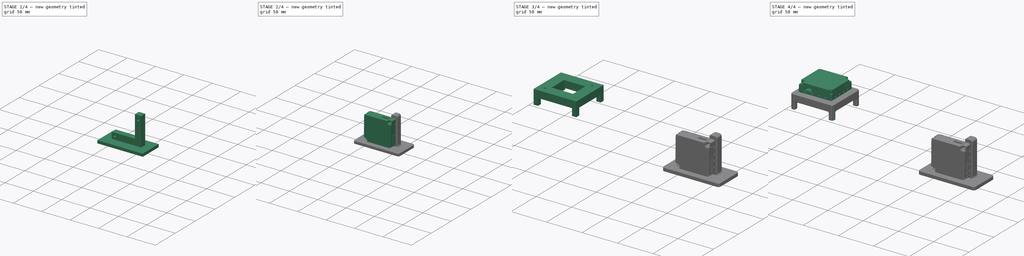
[diagram: build sequence overview — one tinted view per stage of 4, left to right]
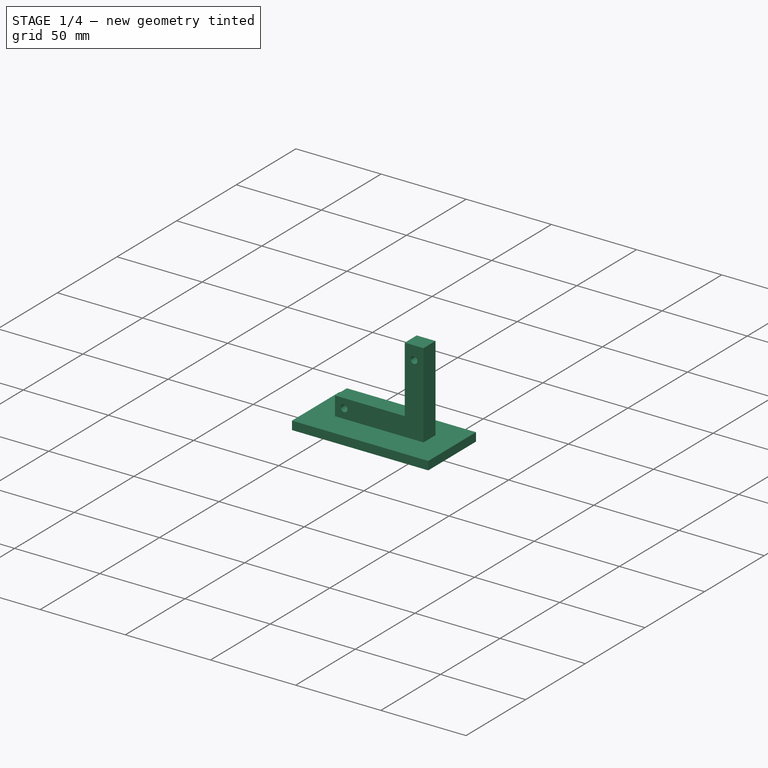
[diagram: stage 1 of 4 — iso view after this stage's code; geometry added in this stage tinted green]
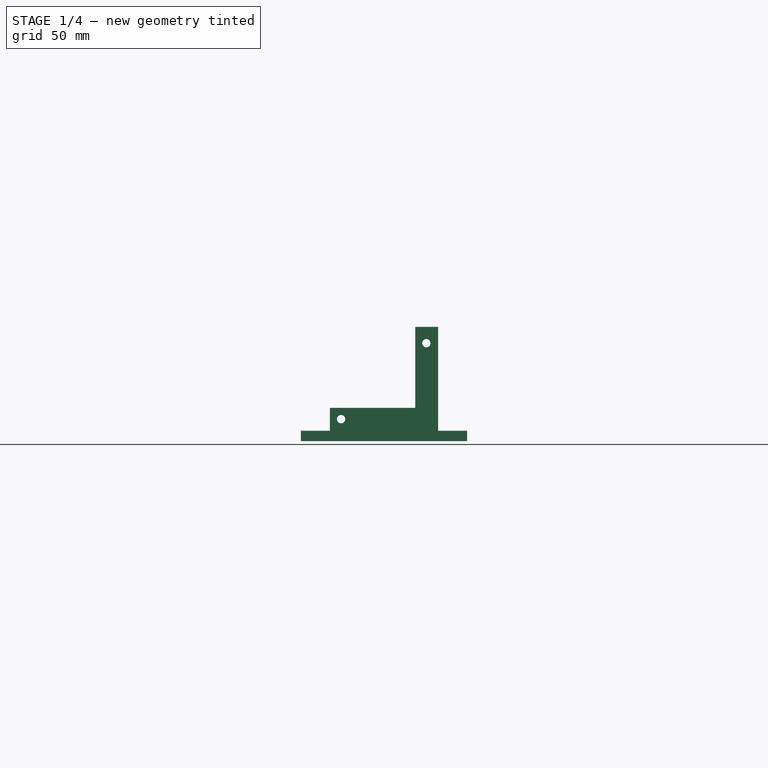
[diagram: stage 1 of 4 — front view after this stage's code; geometry added in this stage tinted green]
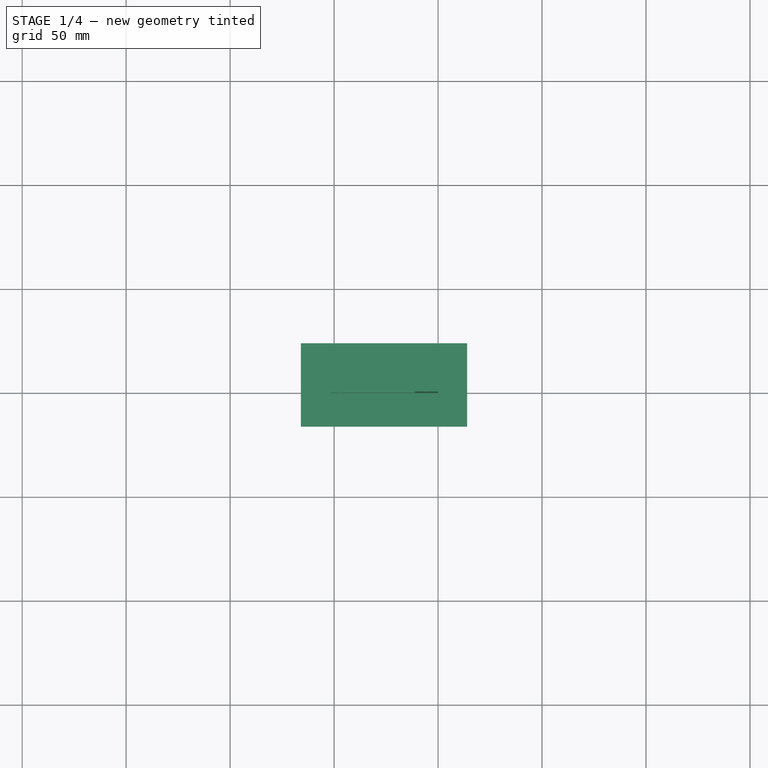
[diagram: stage 1 of 4 — top view after this stage's code; geometry added in this stage tinted green]
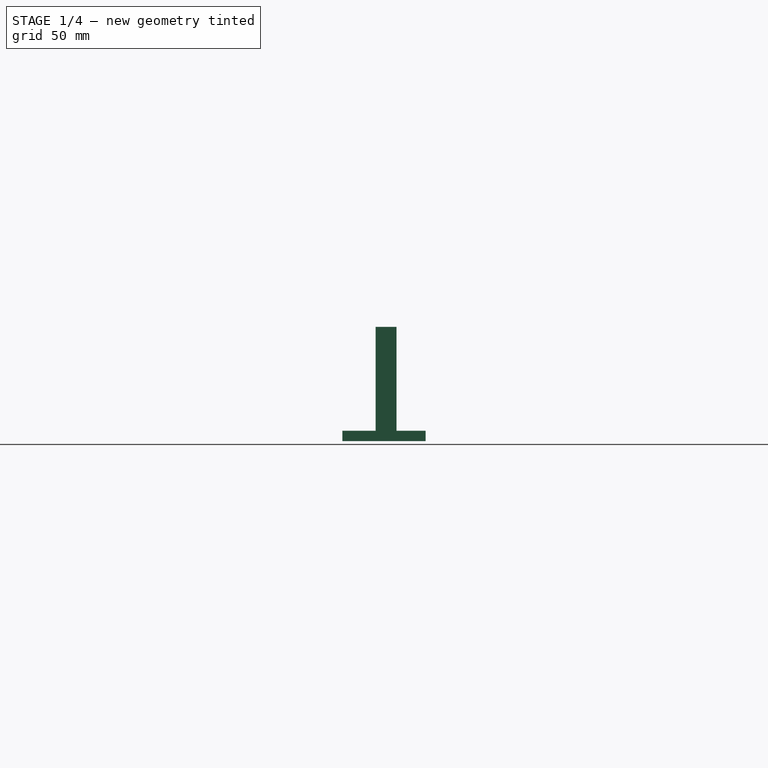
[diagram: stage 1 of 4 — right view after this stage's code; geometry added in this stage tinted green]
FCSTD DOCUMENT  (FreeCAD 1.0R39109 (Git))
Label: IPS7100Base
License: All rights reserved
LicenseURL: https://en.wikipedia.org/wiki/All_rights_reserved
objects: Sketcher::SketchObject×4, Part::Extrusion×4, Part::Feature×2, Part::Compound×2, Part::MultiFuse×2, Part::Fillet×2, App::Part×2
note: 20 computed .brp shape members not serialized (recipe doc carries the construction recipe); baked Part::Feature solids carry a one-line shape summary decoded from their .brp

FEATURE [App::Part] Part001  label="Horizontal"
  Group = -> [Part__Feature103,Compound002,Extrude,Sketch001,Sketch,Extrude001,Fusion,Fillet]
  Origin = -> Origin001
  Placement = pos=(80,0,-30) rot=(0,0,1;0rad)
FEATURE [Sketcher::SketchObject] Sketch002
  ArcFitTolerance = 1e-06
  FullyConstrained = true
  MakeInternals = false
  Placement = pos=(0,0,0) rot=(0,0.707107,0.707107;3.14159rad)
  sketch-geometry (8):
    g0: LineSegment StartX=-200 StartY=4 StartZ=0 EndX=-189 EndY=4 EndZ=0
    g1: LineSegment StartX=-189 StartY=4 StartZ=0 EndX=-189 EndY=-35 EndZ=0
    g2: LineSegment StartX=-189 StartY=-35 StartZ=0 EndX=-148 EndY=-35 EndZ=0
    g3: LineSegment StartX=-148 StartY=-35 StartZ=0 EndX=-148 EndY=-46 EndZ=0
    g4: LineSegment StartX=-148 StartY=-46 StartZ=0 EndX=-200 EndY=-46 EndZ=0
    g5: LineSegment StartX=-200 StartY=-46 StartZ=0 EndX=-200 EndY=4 EndZ=0
    g6: Circle CenterX=-194.38 CenterY=-3.87 CenterZ=0 NormalX=0 NormalY=0 NormalZ=1 AngleXU=0 Radius=2
    g7: Circle CenterX=-153.37 CenterY=-40.4 CenterZ=0 NormalX=0 NormalY=0 NormalZ=1 AngleXU=0 Radius=2
  constraints (24):
    c: Horizontal(g0)
    c: Coincident(g1,g0)
    c: Vertical(g1)
    c: Coincident(g2,g1)
    c: Horizontal(g2)
    c: Coincident(g3,g2)
    c: Vertical(g3)
    c: Coincident(g4,g3)
    c: Horizontal(g4)
    c: Coincident(g5,g4)
    c: Coincident(g5,g0)
    c: Vertical(g5)
    c: Distance(g3,g3) = 11
    c: DistanceX(g2,g2) = 41
    c: DistanceX(g4,g4) = 52
    c: DistanceY(g5,g5) = 50
    c: Distance(g3,g-2) = 148
    c: Distance(g3,g-1) = 46
    c: Equal(g6,g7)
    c: Diameter(g6) = 4
    c: Distance(g7,g3) = 5.37
    c: Distance(g7,g2) = 5.4
    c: Distance(g6,g0) = 7.87
    c: Distance(g6,g5) = 5.62
FEATURE [Part::Extrusion] Extrude002  label="vert"
  Base = -> Sketch002
  Dir = (0,1,-2e-16)
  DirMode = 2
  FaceMakerClass = Part::FaceMakerBullseye
  FaceMakerMode = 3
  LengthFwd = 10
  LengthRev = 0
  Solid = true
  Symmetric = false
FEATURE [Sketcher::SketchObject] Sketch003
  ArcFitTolerance = 1e-06
  FullyConstrained = true
  MakeInternals = false
  Placement = pos=(0,0,0) rot=(1,0,0;3.14159rad)
  sketch-geometry (4):
    g0: LineSegment StartX=134 StartY=16 StartZ=0 EndX=134 EndY=-24 EndZ=0
    g1: LineSegment StartX=134 StartY=-24 StartZ=0 EndX=214 EndY=-24 EndZ=0
    g2: LineSegment StartX=214 StartY=-24 StartZ=0 EndX=214 EndY=16 EndZ=0
    g3: LineSegment StartX=214 StartY=16 StartZ=0 EndX=134 EndY=16 EndZ=0
  constraints (12):
    c: Coincident(g0,g1)
    c: Coincident(g1,g2)
    c: Coincident(g2,g3)
    c: Coincident(g3,g0)
    c: Vertical(g0)
    c: Vertical(g2)
    c: Horizontal(g1)
    c: Horizontal(g3)
    c: DistanceX(g1,g1) = 80
    c: DistanceY(g0,g0) = 40
    c: Distance(g0,g-2) = 134
    c: Distance(g0,g-1) = 24
FEATURE [Part::Extrusion] Extrude003  label="base"
  Base = -> Sketch003
  Dir = (0,0,-1)
  DirMode = 2
  FaceMakerClass = Part::FaceMakerBullseye
  FaceMakerMode = 3
  LengthFwd = 0
  LengthRev = 5
  Placement = pos=(0,0,-51) rot=(0,0,1;0rad)
  Solid = true
  Symmetric = false
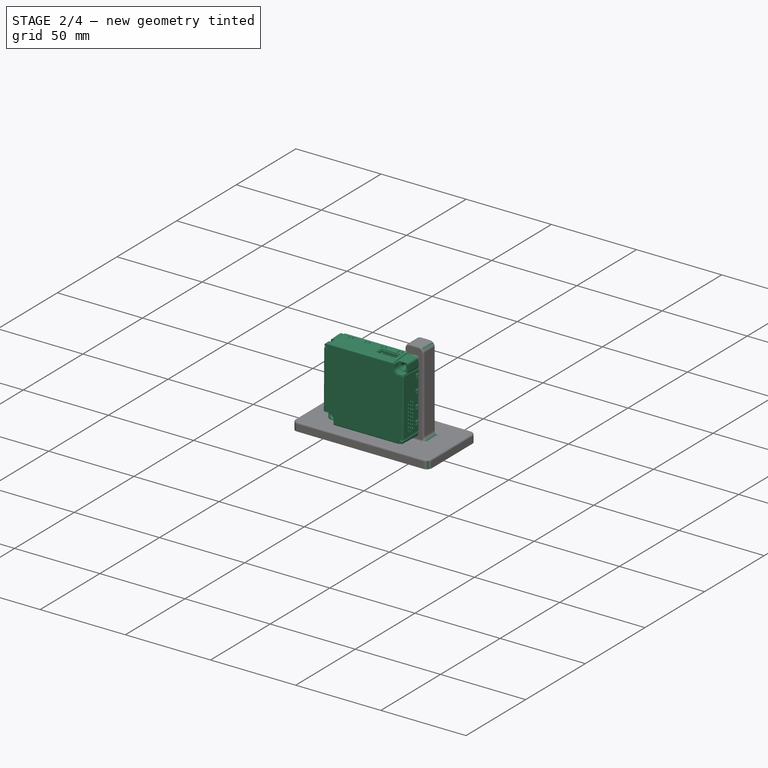
[diagram: stage 2 of 4 — iso view after this stage's code; geometry added in this stage tinted green]
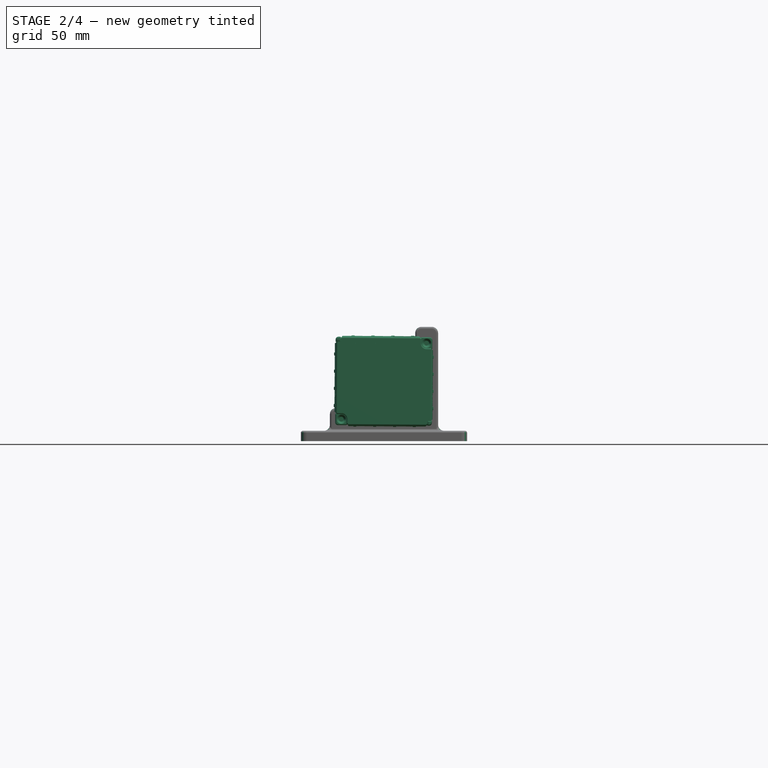
[diagram: stage 2 of 4 — front view after this stage's code; geometry added in this stage tinted green]
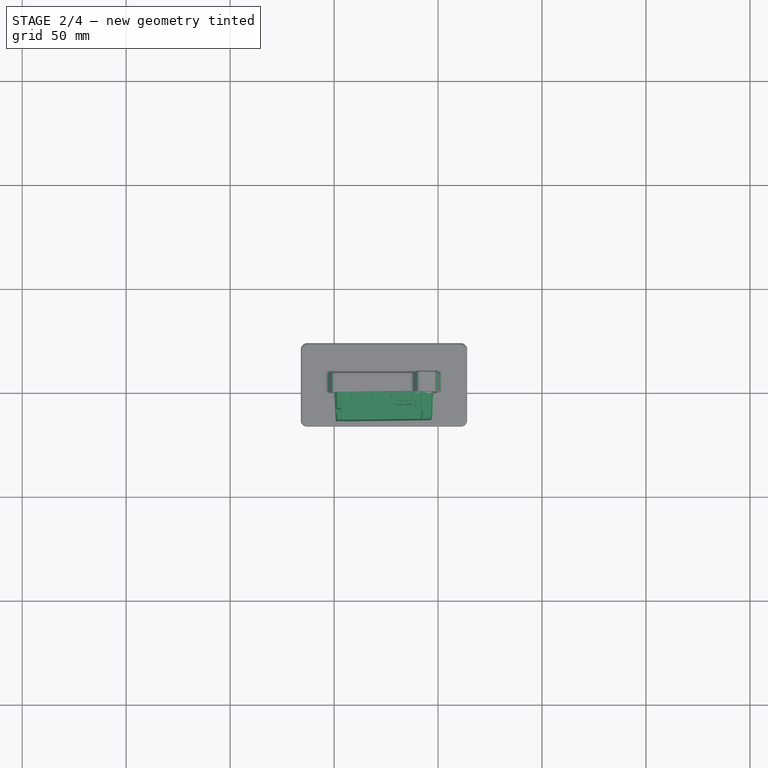
[diagram: stage 2 of 4 — top view after this stage's code; geometry added in this stage tinted green]
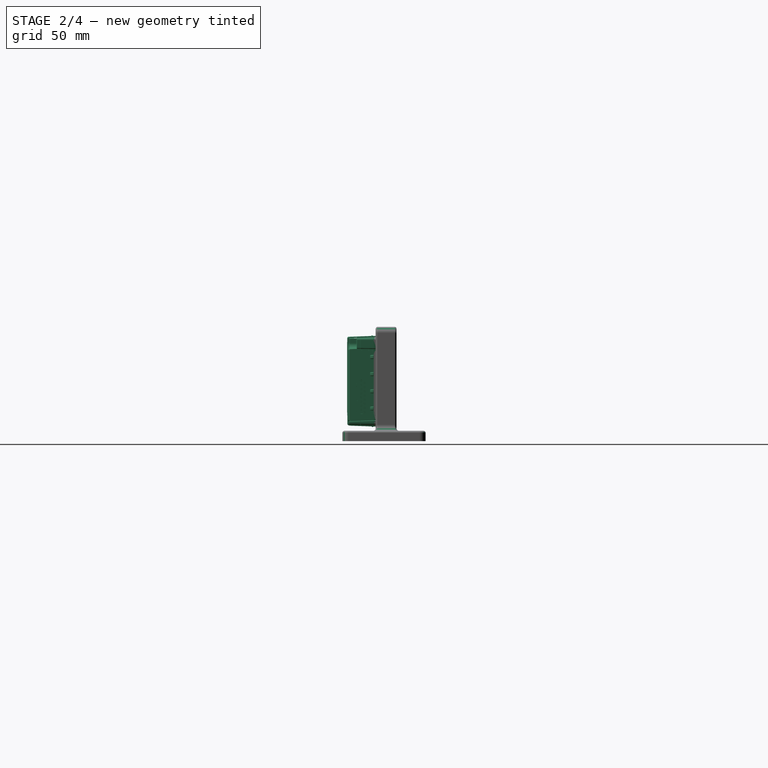
[diagram: stage 2 of 4 — right view after this stage's code; geometry added in this stage tinted green]
FEATURE [Part::Feature] Part__Feature102  label="ips7101"
  Placement = pos=(-24,0,222) rot=(0.999993,-0.003655,0;3.14159rad)
  shape: bbox 48.14 x 14.05 x 44.14 mm, 1935 faces (baked)
FEATURE [Part::Compound] Compound001  label="ips7100s001_Vertical"
  Links = -> [Part__Feature102]
  Placement = pos=(150,0,0) rot=(0.003085,-0.999995,0;3.13542rad)
FEATURE [Part::MultiFuse] Fusion001  label="Mnt"
  Refine = true
  Shapes = -> [Extrude002,Extrude003]
FEATURE [Part::Fillet] Fillet001  label="Mount"
  Base = -> Fusion001
  EdgeLinks = -> Fusion001 [Edge1,Edge2,Edge3,Edge4,Edge5,Edge6,Edge7,Edge8,Edge9,Edge10,Edge11,Edge12,Edge13,Edge16,Edge17,Edge18,Edge21,Edge22,Edge23,Edge24,Edge25,Edge26,Edge29,Edge30,Edge32,Edge34]
  Edges = 26 edges: [Edge1 r=3,Edge2 r=3,Edge3 r=1,Edge4 r=1,Edge5 r=3,Edge6 r=1,Edge7 r=1,Edge8 r=3,Edge9 r=1,Edge10 r=1,Edge11 r=1,Edge12 r=1,Edge13 r=1,Edge16 r=1,Edge17 r=1,Edge18 r=1,Edge21 r=1,Edge22 r=1,Edge23 r=1,Edge24 r=1,Edge25 r=3,Edge26 r=3,Edge29 r=3,Edge30 r=3,Edge32 r=3,Edge34 r=3]
FEATURE [App::Part] Part  label="Vertical"
  Group = -> [Part__Feature102,Compound001,Sketch002,Sketch003,Extrude003,Extrude002,Fusion001,Fillet001]
  Origin = -> Origin
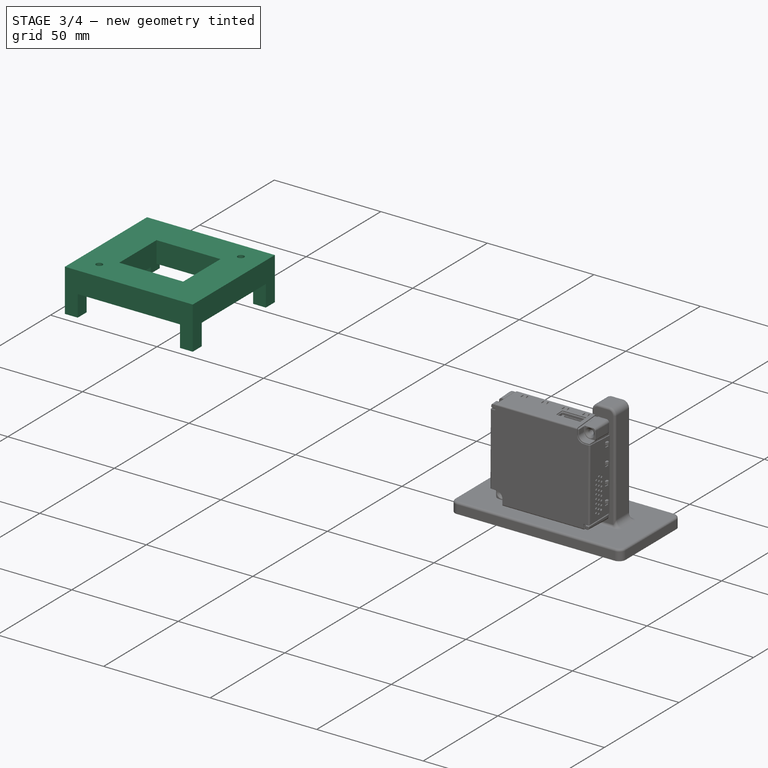
[diagram: stage 3 of 4 — iso view after this stage's code; geometry added in this stage tinted green]
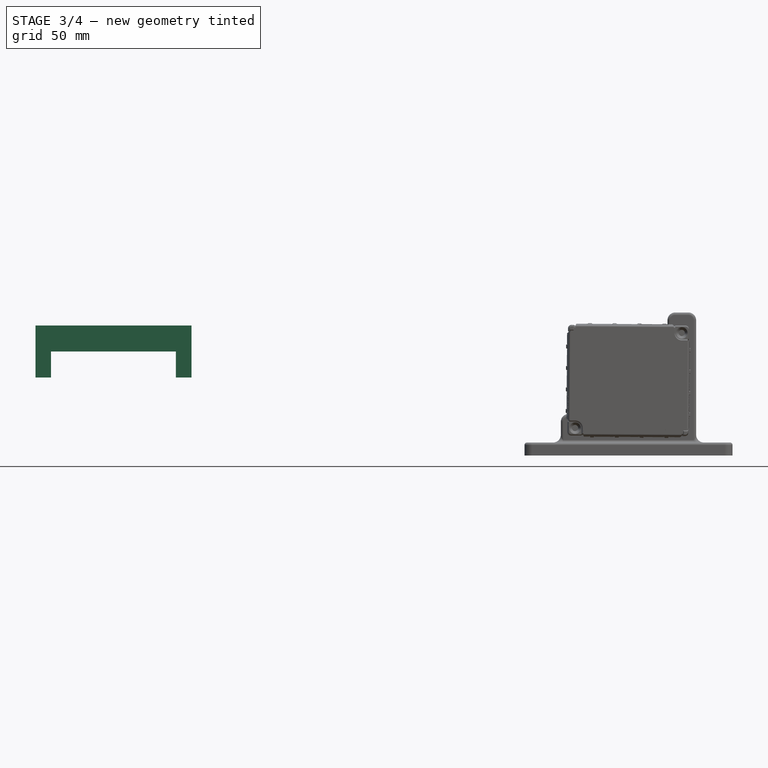
[diagram: stage 3 of 4 — front view after this stage's code; geometry added in this stage tinted green]
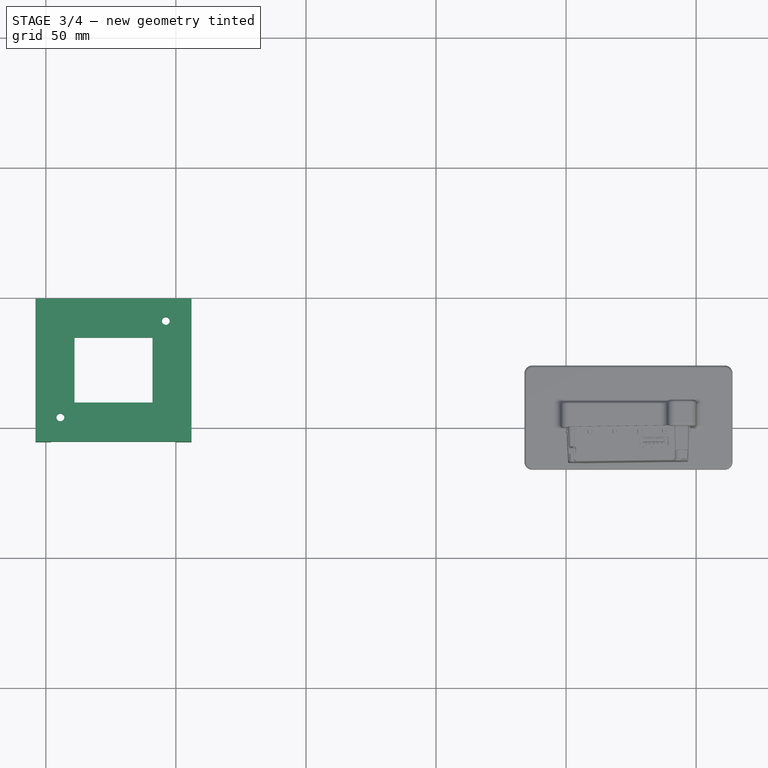
[diagram: stage 3 of 4 — top view after this stage's code; geometry added in this stage tinted green]
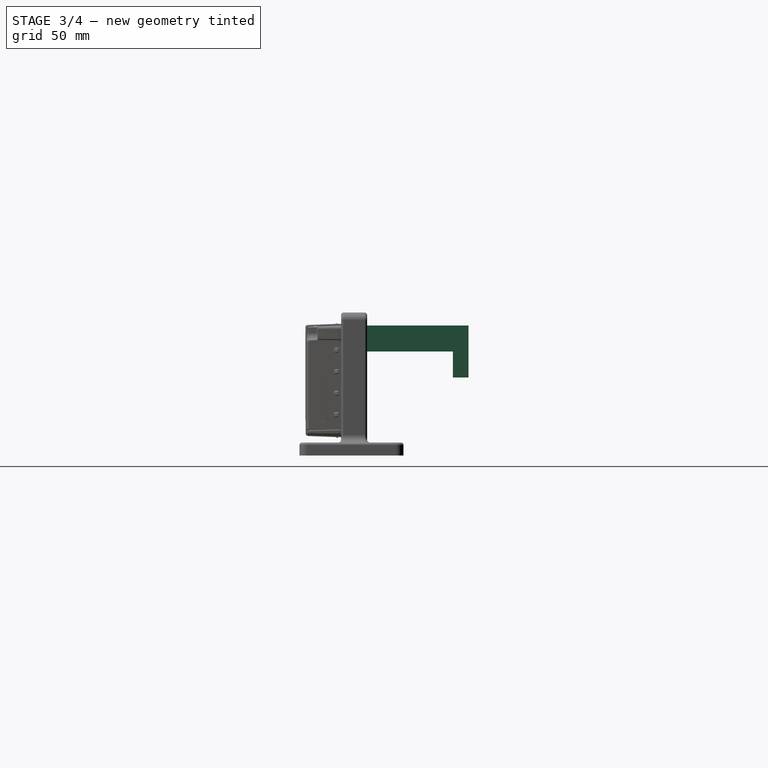
[diagram: stage 3 of 4 — right view after this stage's code; geometry added in this stage tinted green]
FEATURE [Part::Extrusion] Extrude  label="base_mount"
  Base = -> Sketch
  Dir = (0,0,1)
  DirMode = 2
  FaceMakerClass = Part::FaceMakerBullseye
  FaceMakerMode = 3
  LengthFwd = 10
  LengthRev = 0
  Placement = pos=(0,0,-11) rot=(0,0,1;0rad)
  Solid = true
  Symmetric = false
FEATURE [Sketcher::SketchObject] Sketch001
  ArcFitTolerance = 1e-06
  FullyConstrained = true
  MakeInternals = false
  Placement = pos=(0,0,0) rot=(1,0,0;3.14159rad)
  sketch-geometry (16):
    g0: LineSegment StartX=0 StartY=0 StartZ=0 EndX=6 EndY=0 EndZ=0
    g1: LineSegment StartX=6 StartY=0 StartZ=0 EndX=6 EndY=6 EndZ=0
    g2: LineSegment StartX=6 StartY=6 StartZ=0 EndX=0 EndY=6 EndZ=0
    g3: LineSegment StartX=0 StartY=6 StartZ=0 EndX=0 EndY=0 EndZ=0
    g4: LineSegment StartX=6 StartY=-49 StartZ=0 EndX=6 EndY=-43 EndZ=0
    g5: LineSegment StartX=6 StartY=-43 StartZ=0 EndX=0 EndY=-43 EndZ=0
    g6: LineSegment StartX=0 StartY=-43 StartZ=0 EndX=0 EndY=-49 EndZ=0
    g7: LineSegment StartX=0 StartY=-49 StartZ=0 EndX=6 EndY=-49 EndZ=0
    g8: LineSegment StartX=-54 StartY=-49 StartZ=0 EndX=-48 EndY=-49 EndZ=0
    g9: LineSegment StartX=-48 StartY=-49 StartZ=0 EndX=-48 EndY=-43 EndZ=0
    g10: LineSegment StartX=-48 StartY=-43 StartZ=0 EndX=-54 EndY=-43 EndZ=0
    g11: LineSegment StartX=-54 StartY=-43 StartZ=0 EndX=-54 EndY=-49 EndZ=0
    g12: LineSegment StartX=-54 StartY=6 StartZ=0 EndX=-54 EndY=0 EndZ=0
    g13: LineSegment StartX=-54 StartY=0 StartZ=0 EndX=-48 EndY=0 EndZ=0
    g14: LineSegment StartX=-48 StartY=0 StartZ=0 EndX=-48 EndY=6 EndZ=0
    g15: LineSegment StartX=-48 StartY=6 StartZ=0 EndX=-54 EndY=6 EndZ=0
  constraints (47):
    c: Coincident(g0,g1)
    c: Coincident(g1,g2)
    c: Coincident(g2,g3)
    c: Coincident(g3,g0)
    c: Horizontal(g0)
    c: Horizontal(g2)
    c: Vertical(g1)
    c: Vertical(g3)
    c: Coincident(g0,g-1)
    c: Coincident(g4,g5)
    c: Coincident(g5,g6)
    c: Coincident(g6,g7)
    c: Coincident(g7,g4)
    c: Vertical(g4)
    c: Vertical(g6)
    c: Horizontal(g5)
    c: Horizontal(g7)
    c: PointOnObject(g5,g-2)
    c: Coincident(g8,g9)
    c: Coincident(g9,g10)
    c: Coincident(g10,g11)
    c: Coincident(g11,g8)
    c: Horizontal(g8)
    c: Horizontal(g10)
    c: Vertical(g9)
    c: Vertical(g11)
    c: Coincident(g12,g13)
    c: Coincident(g13,g14)
    c: Coincident(g14,g15)
    c: Coincident(g15,g12)
    c: Vertical(g12)
    c: Vertical(g14)
    c: Horizontal(g13)
    c: Horizontal(g15)
    c: PointOnObject(g13,g-1)
    c: DistanceX(g0,g0) = 6
    c: DistanceY(g3,g3) = 6
    c: Vertical(g0,g4)
    c: DistanceY(g6,g6) = 6
    c: Distance(g0,g7) = 49
    c: Horizontal(g9,g5)
    c: Horizontal(g8,g6)
    c: Horizontal(g14,g2)
    c: DistanceX(g13,g13) = 6
    c: DistanceX(g12,g-1) = 54
    c: Vertical(g13,g9)
    c: Vertical(g12,g10)
FEATURE [Part::Extrusion] Extrude001  label="legs"
  Base = -> Sketch001
  Dir = (0,0,-1)
  DirMode = 2
  FaceMakerClass = Part::FaceMakerBullseye
  FaceMakerMode = 3
  LengthFwd = 0
  LengthRev = 10
  Placement = pos=(0,0,-21) rot=(0,0,1;0rad)
  Solid = true
  Symmetric = false
FEATURE [Part::MultiFuse] Fusion  label="base_w_legs"
  Refine = true
  Shapes = -> [Extrude,Extrude001]
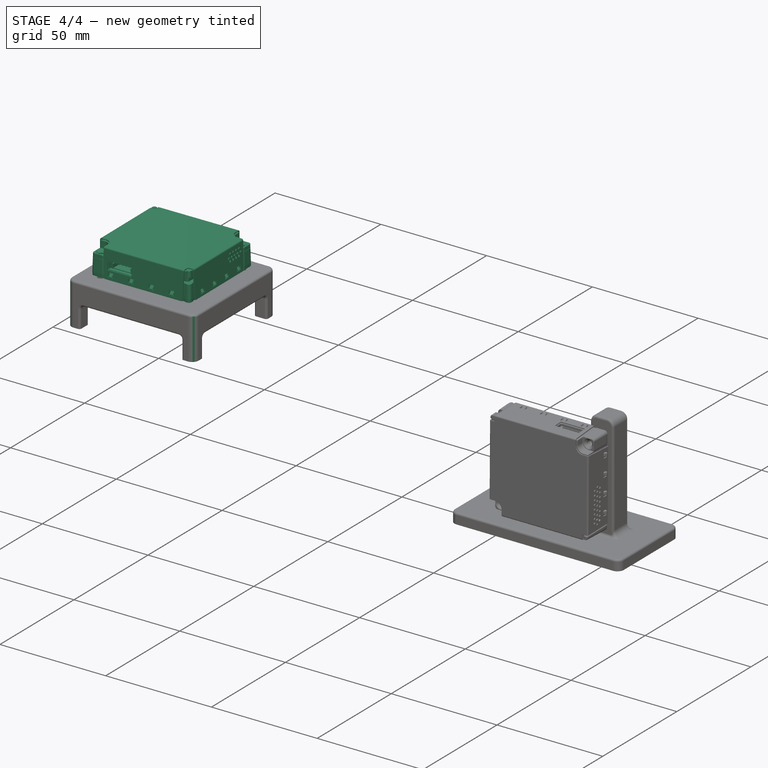
[diagram: stage 4 of 4 — iso view after this stage's code; geometry added in this stage tinted green]
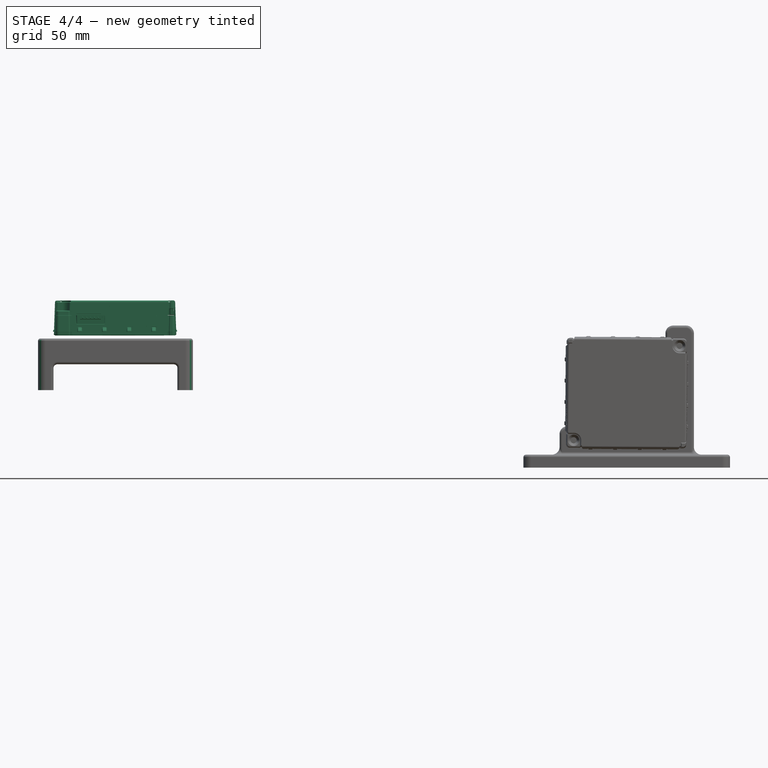
[diagram: stage 4 of 4 — front view after this stage's code; geometry added in this stage tinted green]
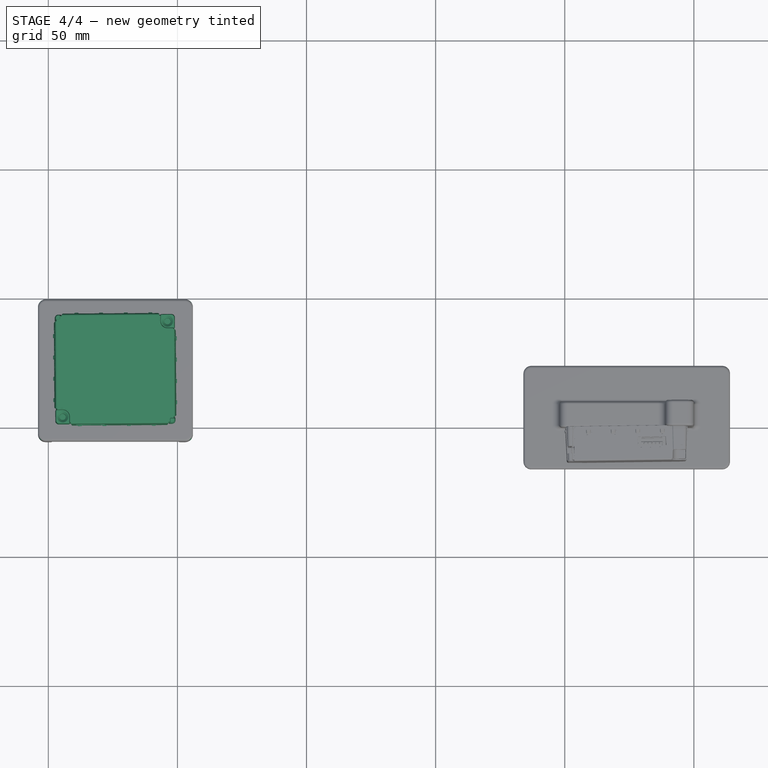
[diagram: stage 4 of 4 — top view after this stage's code; geometry added in this stage tinted green]
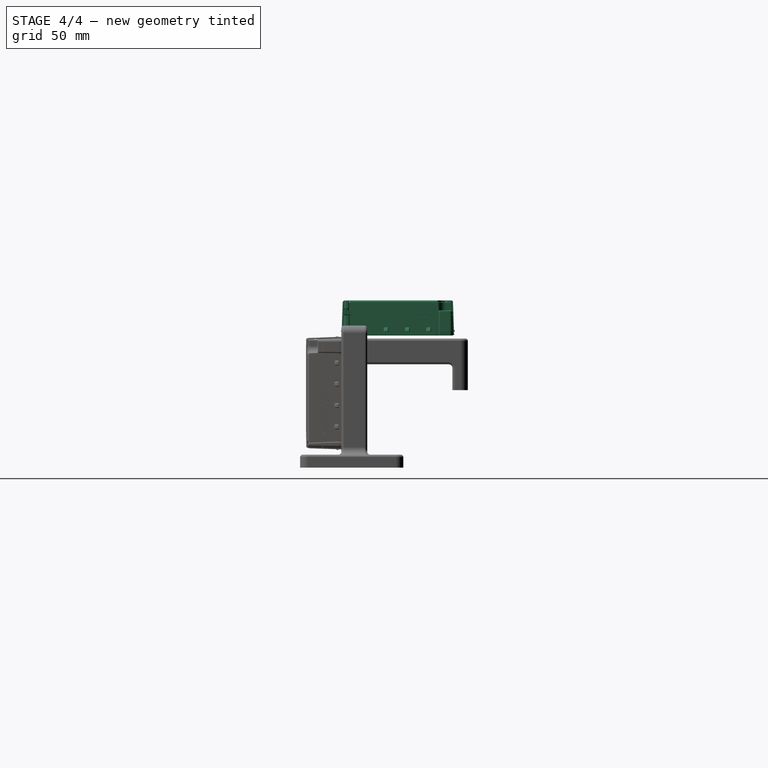
[diagram: stage 4 of 4 — right view after this stage's code; geometry added in this stage tinted green]
FEATURE [Sketcher::SketchObject] Sketch
  ArcFitTolerance = 1e-06
  FullyConstrained = true
  MakeInternals = false
  MapMode = 2
  sketch-geometry (10):
    g0: LineSegment StartX=-54 StartY=49 StartZ=0 EndX=-54 EndY=-6 EndZ=0
    g1: LineSegment StartX=-54 StartY=-6 StartZ=0 EndX=6 EndY=-6 EndZ=0
    g2: LineSegment StartX=6 StartY=-6 StartZ=0 EndX=6 EndY=49 EndZ=0
    g3: LineSegment StartX=6 StartY=49 StartZ=0 EndX=-54 EndY=49 EndZ=0
    g4: LineSegment StartX=-39 StartY=34 StartZ=0 EndX=-39 EndY=9 EndZ=0
    g5: LineSegment StartX=-39 StartY=9 StartZ=0 EndX=-9 EndY=9 EndZ=0
    g6: LineSegment StartX=-9 StartY=9 StartZ=0 EndX=-9 EndY=34 EndZ=0
    g7: LineSegment StartX=-9 StartY=34 StartZ=0 EndX=-39 EndY=34 EndZ=0
    g8: Circle CenterX=-3.88 CenterY=40.38 CenterZ=0 NormalX=0 NormalY=0 NormalZ=1 AngleXU=0 Radius=1.5
    g9: Circle CenterX=-44.42 CenterY=3.32 CenterZ=0 NormalX=0 NormalY=0 NormalZ=1 AngleXU=0 Radius=1.5
  constraints (30):
    c: Coincident(g0,g1)
    c: Coincident(g1,g2)
    c: Coincident(g2,g3)
    c: Coincident(g3,g0)
    c: Vertical(g0)
    c: Vertical(g2)
    c: Horizontal(g1)
    c: Horizontal(g3)
    c: Distance(g2,g-2) = 6
    c: Distance(g1,g-1) = 6
    c: DistanceX(g1,g1) = 60
    c: DistanceY(g0,g0) = 55
    c: Coincident(g4,g5)
    c: Coincident(g5,g6)
    c: Coincident(g6,g7)
    c: Coincident(g7,g4)
    c: Vertical(g4)
    c: Vertical(g6)
    c: Horizontal(g5)
    c: Horizontal(g7)
    c: DistanceY(g4,g4) = 25
    c: DistanceX(g7,g7) = 30
    c: Distance(g4,g-1) = 9
    c: DistanceX(g4,g-1) = 39
    c: Equal(g8,g9)
    c: Diameter(g8) = 3
    c: Distance(g8,g7) = 6.38
    c: Distance(g8,g6) = 5.12
    c: Distance(g9,g5) = 5.68
    c: Distance(g9,g4) = 5.42
FEATURE [Part::Feature] Part__Feature103  label="ips7102"
  Placement = pos=(-24,0,222) rot=(0.999993,-0.003655,0;3.14159rad)
  shape: bbox 48.14 x 14.05 x 44.14 mm, 1935 faces (baked)
FEATURE [Part::Compound] Compound002  label="ips7100_Horizontal001"
  Links = -> [Part__Feature103]
  Placement = pos=(0,0,0) rot=(-0.999981,0,0.006171;1.57082rad)
FEATURE [Part::Fillet] Fillet  label="Horizontal_Base"
  Base = -> Fusion
  EdgeLinks = -> Fusion [Edge1,Edge2,Edge3,Edge4,Edge5,Edge6,Edge7,Edge8,Edge9,Edge10,Edge11,Edge12,Edge13,Edge14,Edge15,Edge16,Edge17,Edge18,Edge19,Edge20,Edge25,Edge26,Edge27,Edge29,Edge31,Edge32,Edge34,Edge36,Edge37,Edge39,Edge42,Edge43,Edge44,Edge45,Edge46,Edge47,Edge48,Edge49,Edge50,Edge51,+8 more]
  Edges = 48 edges: [Edge1 r=1.5,Edge2 r=1.5,Edge3 r=1,Edge4 r=1.5,Edge5 r=1.5,Edge6 r=1,Edge7 r=1.5,Edge8 r=1.5,Edge9 r=1,Edge10 r=1.5,Edge11 r=1.5,Edge12 r=1,Edge13 r=0.5,Edge14 r=1,Edge15 r=1,Edge16 r=1,Edge17 r=1,Edge18 r=0.5,Edge19 r=1,Edge20 r=1,Edge25 r=1,Edge26 r=1,Edge27 r=1,Edge29 r=1,Edge31 r=1,Edge32 r=1,Edge34 r=1,Edge36 r=1,Edge37 r=1,Edge39 r=1,Edge42 r=0.5,Edge43 r=1,Edge44 r=1,Edge45 r=1,Edge46 r=1,Edge47 r=1,Edge48 r=1,Edge49 r=1,Edge50 r=1,Edge51 r=0.5,Edge52 r=2,Edge53 r=2,Edge54 r=2,Edge55 r=2,Edge63 r=3,Edge64 r=3,Edge65 r=3,Edge66 r=3]
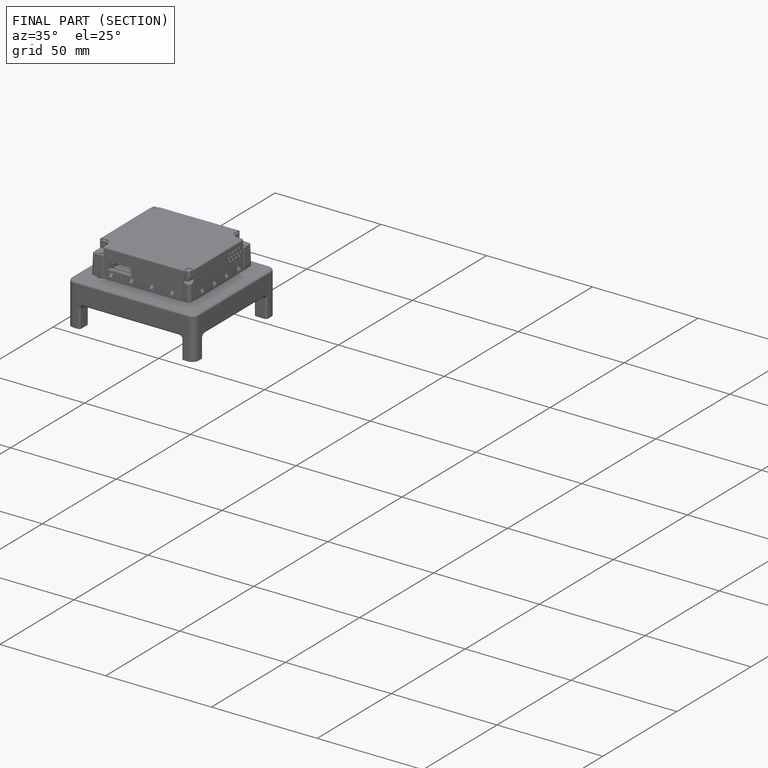
[diagram: finished part — half-section view (interior)]
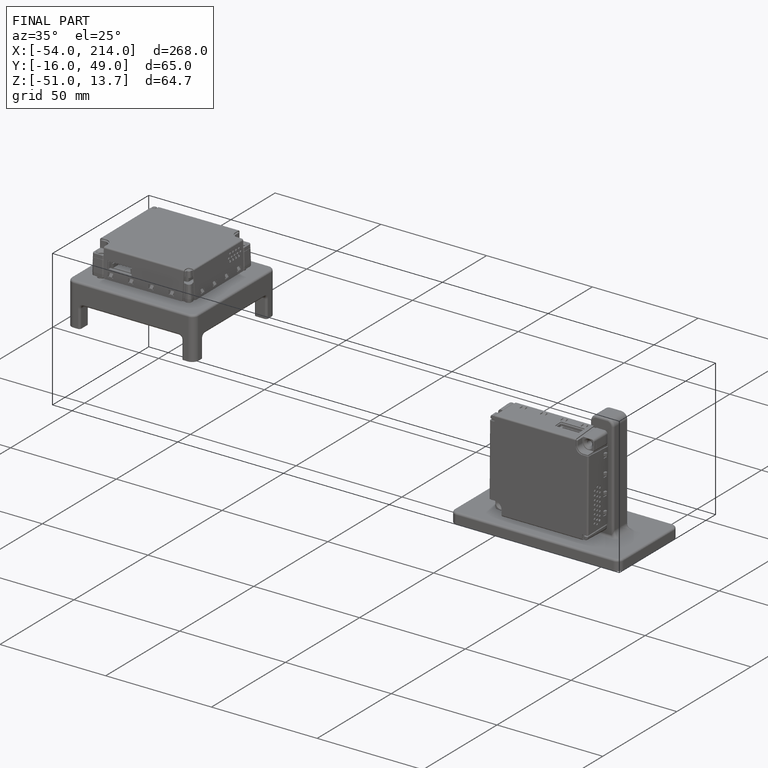
[diagram: finished part — iso view with bounding-box wireframe]
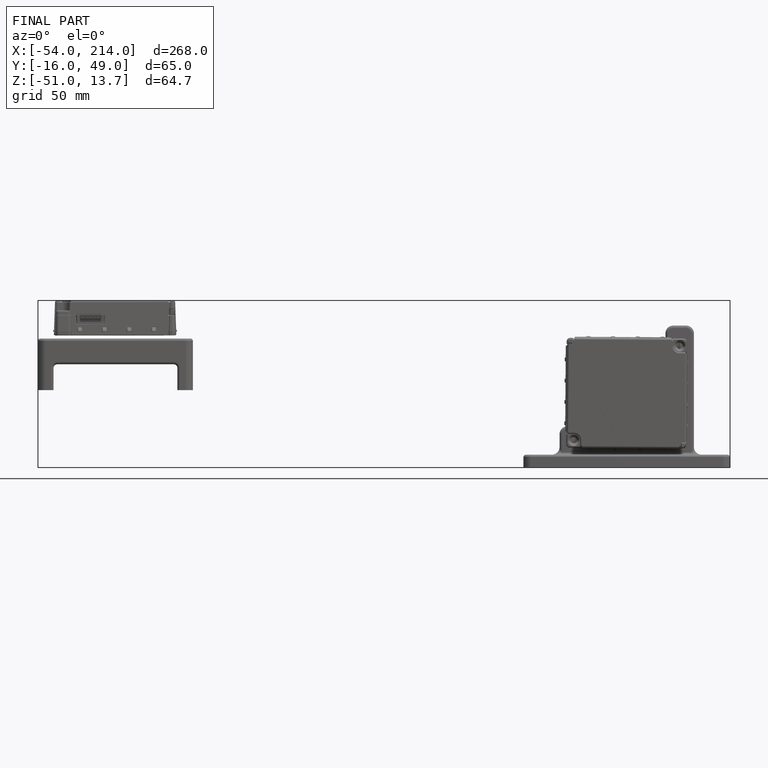
[diagram: finished part — front view with bounding-box wireframe]
